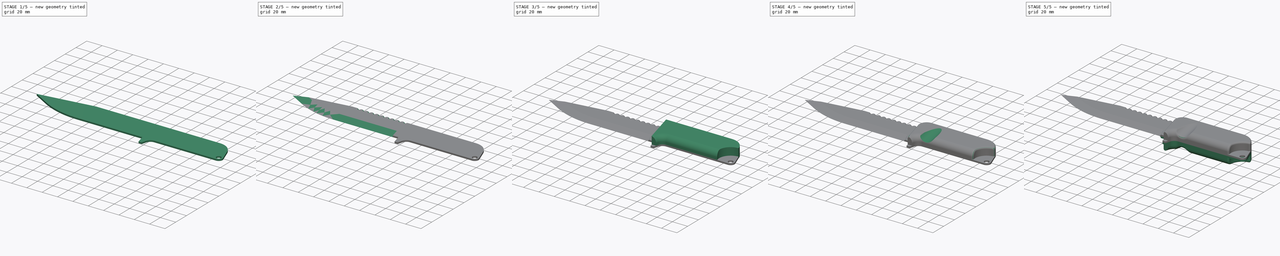
[diagram: build sequence overview — one tinted view per stage of 5, left to right]
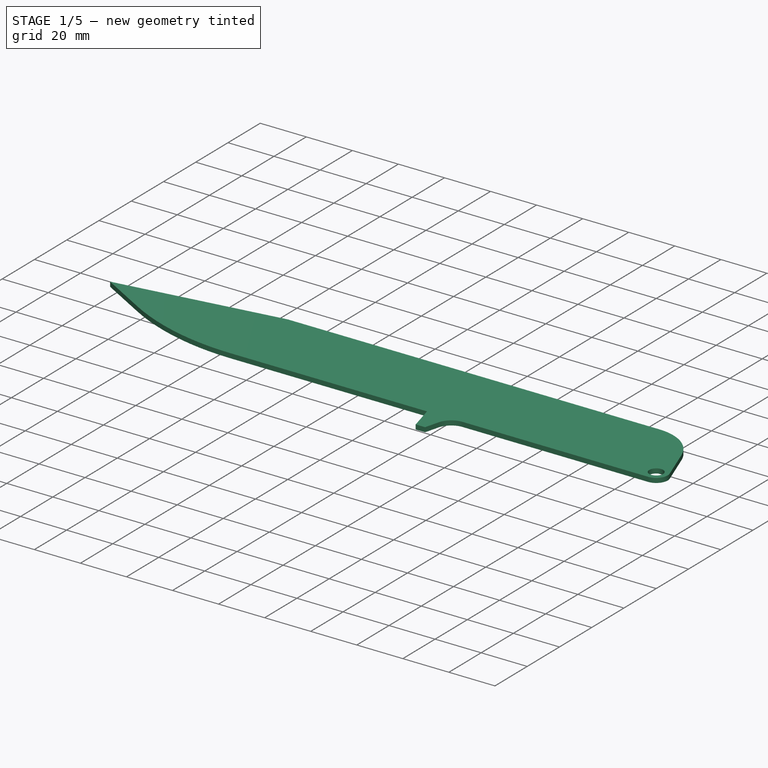
[diagram: stage 1 of 5 — iso view after this stage's code; geometry added in this stage tinted green]
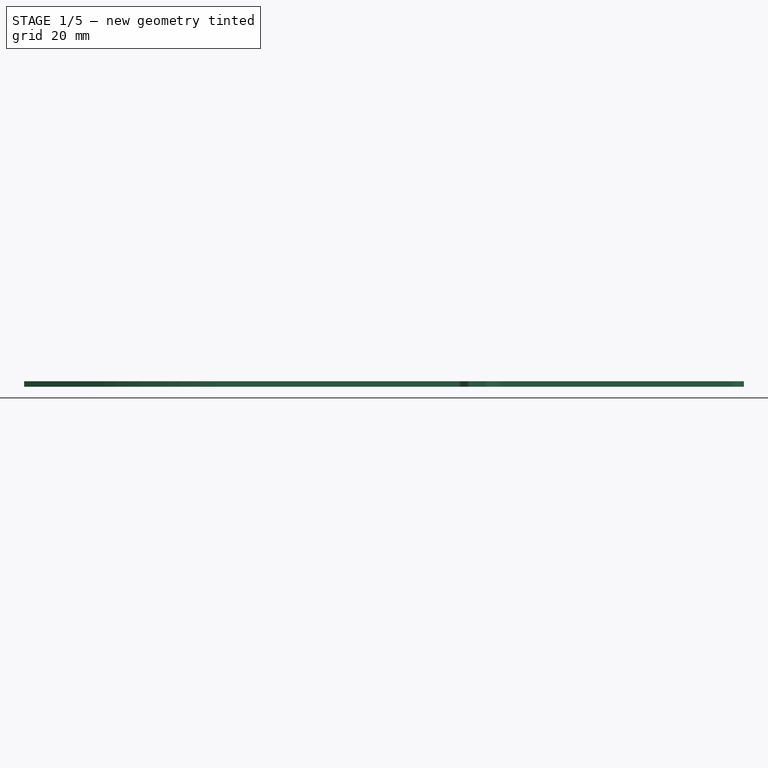
[diagram: stage 1 of 5 — front view after this stage's code; geometry added in this stage tinted green]
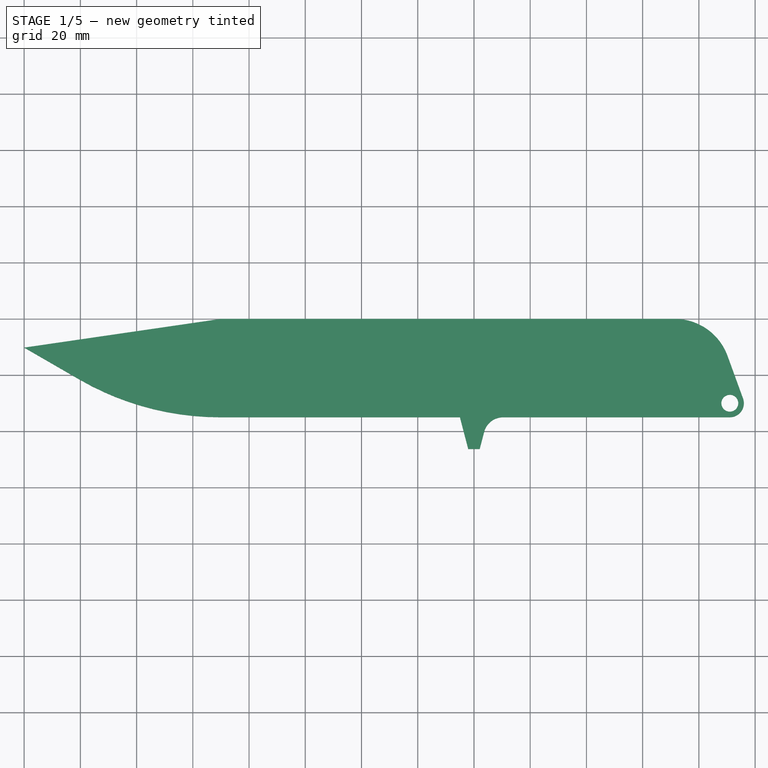
[diagram: stage 1 of 5 — top view after this stage's code; geometry added in this stage tinted green]
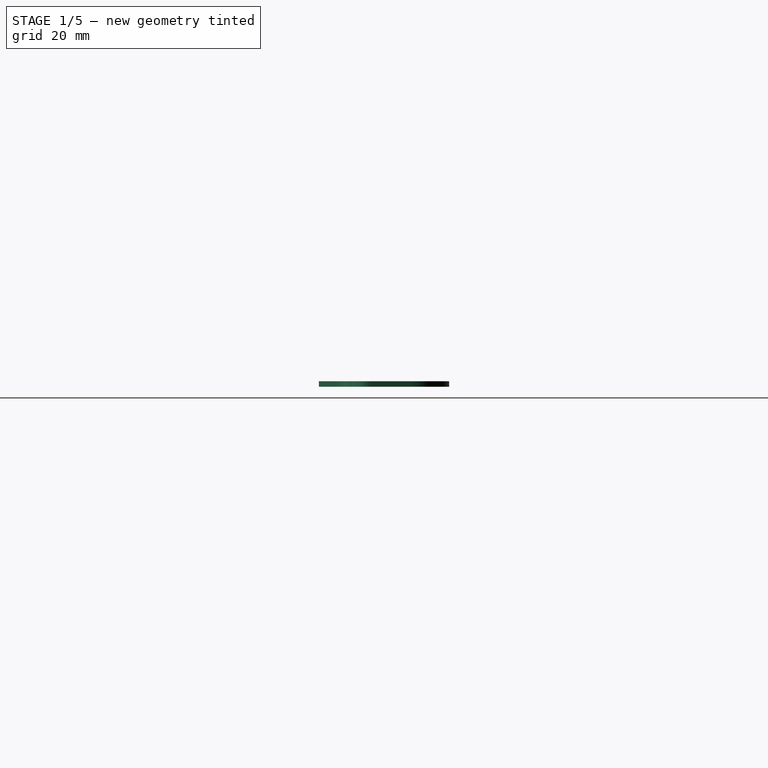
[diagram: stage 1 of 5 — right view after this stage's code; geometry added in this stage tinted green]
FCSTD DOCUMENT  (FreeCAD 0.21R33771 (Git))
Label: ex38
License: All rights reserved
LicenseURL: https://en.wikipedia.org/wiki/All_rights_reserved
objects: Sketcher::SketchObject×7, PartDesign::Fillet×7, PartDesign::Pad×4, PartDesign::Pocket×2, PartDesign::LinearPattern×1, PartDesign::Chamfer×1, PartDesign::Body×1, Part::Mirroring×1, Part::MultiFuse×1
note: 39 computed .brp shape members not serialized (recipe doc carries the construction recipe); baked Part::Feature solids carry a one-line shape summary decoded from their .brp

FEATURE [Sketcher::SketchObject] Sketch
  FullyConstrained = true
  MapMode = 5
  Support = -> [XY_Plane]
  sketch-geometry (9):
    g0: LineSegment StartX=-9.80852 StartY=-13.1596 StartZ=0 EndX=-4.30154 EndY=-28.2899 EndZ=0
    g1: LineSegment StartX=-9 StartY=-35 StartZ=0 EndX=-190.271 EndY=-35 EndZ=0
    g2: LineSegment StartX=-240.271 StartY=-21.6025 StartZ=0 EndX=-260 EndY=-10.2119 EndZ=0
    g3: LineSegment StartX=-260 StartY=-10.2119 StartZ=0 EndX=-190 EndY=0 EndZ=0
    g4: LineSegment StartX=-190 StartY=0 StartZ=0 EndX=-28.6024 EndY=0 EndZ=0
    g5: ArcOfCircle CenterX=-28.6024 CenterY=-20 CenterZ=0 NormalX=0 NormalY=0 NormalZ=1 AngleXU=0 Radius=20 StartAngle=0.349066 EndAngle=1.5708
    g6: ArcOfCircle CenterX=-9 CenterY=-30 CenterZ=0 NormalX=0 NormalY=0 NormalZ=1 AngleXU=0 Radius=5 StartAngle=4.71239 EndAngle=6.63225
    g7: ArcOfCircle CenterX=-190.271 CenterY=65 CenterZ=0 NormalX=0 NormalY=0 NormalZ=1 AngleXU=0 Radius=100 StartAngle=4.18879 EndAngle=4.71239
    g8: Circle CenterX=-9 CenterY=-30 CenterZ=0 NormalX=0 NormalY=0 NormalZ=1 AngleXU=0 Radius=3
  constraints (22):
    c: Horizontal(g1)
    c: Coincident(g2,g3)
    c: Coincident(g3,g4)
    c: Tangent(g4,g5) = 1.5708
    c: Tangent(g0,g5) = 1.5708
    c: Tangent(g0,g6) = 1.5708
    c: Tangent(g1,g6) = 1.5708
    c: Tangent(g2,g7) = 1.5708
    c: Tangent(g1,g7) = 1.5708
    c: DistanceX(g2,g3) = 70
    c: Tangent(g4,g-1)
    c: DistanceX(g2,g-1) = 260
    c: Radius(g5) = 20
    c: Radius(g6) = 5
    c: Angle(g2,g-1) = 0.523599
    c: DistanceY(g1,g4) = 35
    c: Radius(g7) = 100
    c: DistanceX(g6,g-1) = 9
    c: Angle(g0,g1) = 1.22173
    c: Angle(g3,g-1) = 2.99673
    c: Coincident(g8,g6)
    c: Radius(g8) = 3
FEATURE [PartDesign::Pad] Pad
  Direction = (0,0,1)
  Length = 2
  Length2 = 10
  Profile = -> Sketch
  ReferenceAxis = -> Sketch [N_Axis]
  Type = 0
FEATURE [Sketcher::SketchObject] Sketch001
  ExternalGeometry = -> [Pad]
  FullyConstrained = false
  MapMode = 5
  Support = -> [XY_Plane]
  sketch-geometry (6):
    g0: LineSegment StartX=-105 StartY=-35 StartZ=0 EndX=-102.039 EndY=-46.2992 EndZ=0
    g1: LineSegment StartX=-102.039 StartY=-46.2992 StartZ=0 EndX=-97.9615 EndY=-46.2992 EndZ=0
    g2: LineSegment StartX=-97.9615 StartY=-46.2992 StartZ=0 EndX=-95 EndY=-35 EndZ=0
    g3: LineSegment StartX=-95 StartY=-35 StartZ=0 EndX=-105 EndY=-35 EndZ=0
    g4: ArcOfCircle CenterX=-100 CenterY=-43.6847 CenterZ=0 NormalX=0 NormalY=0 NormalZ=1 AngleXU=0 Radius=3.31527 StartAngle=4.05014 EndAngle=5.37463
    g5: GeomPoint X=-100 Y=-47 Z=0
  constraints (15):
    c: PointOnObject(g0,g-3)
    c: Coincident(g0,g1)
    c: Coincident(g1,g2)
    c: PointOnObject(g2,g-3)
    c: Coincident(g2,g3)
    c: Coincident(g3,g0)
    c: DistanceX(g3,g3) = 10
    c: DistanceX(g2,g-1) = 95
    c: Coincident(g4,g0)
    c: Coincident(g4,g1)
    c: PointOnObject(g5,g4)
    c: Vertical(g4,g5)
    c: DistanceY(g5,g0) = 12
    c: Parallel(g1,g3)
    c: Equal(g0,g2)
FEATURE [PartDesign::Pad] Pad001
  BaseFeature = -> Pad
  Direction = (0,0,1)
  Length = 2
  Length2 = 10
  Profile = -> Sketch001
  ReferenceAxis = -> Sketch001 [N_Axis]
  Type = 0
FEATURE [PartDesign::Fillet] Fillet
  Base = -> Pad001 [Edge32]
  BaseFeature = -> Pad001
  Radius = 7
  SupportTransform = false
  UseAllEdges = false
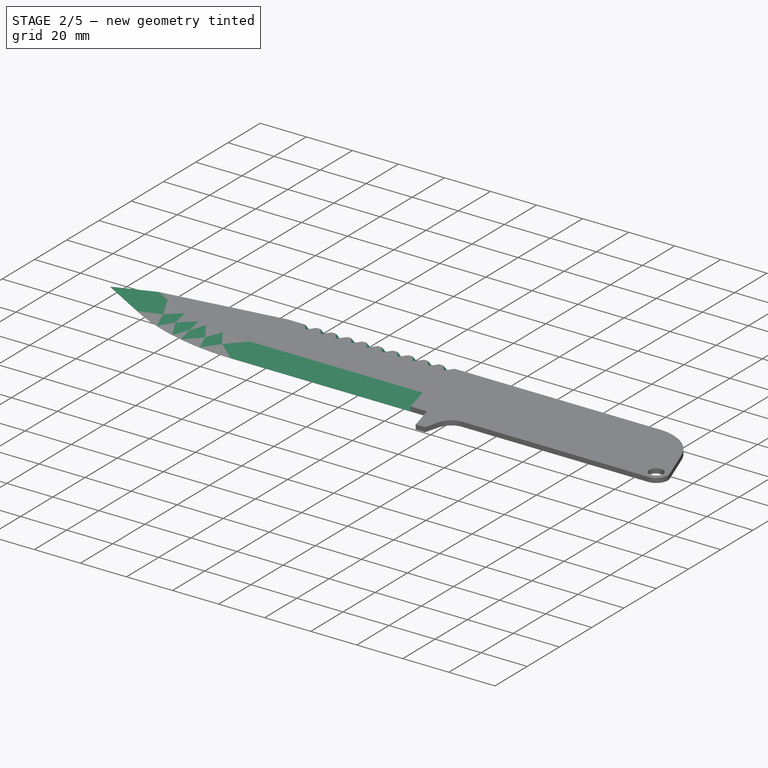
[diagram: stage 2 of 5 — iso view after this stage's code; geometry added in this stage tinted green]
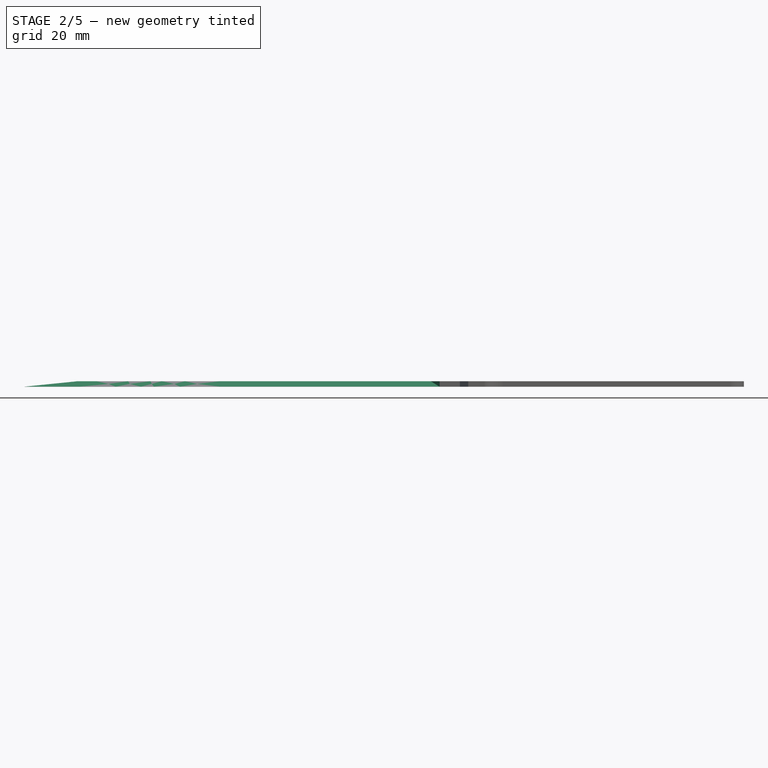
[diagram: stage 2 of 5 — front view after this stage's code; geometry added in this stage tinted green]
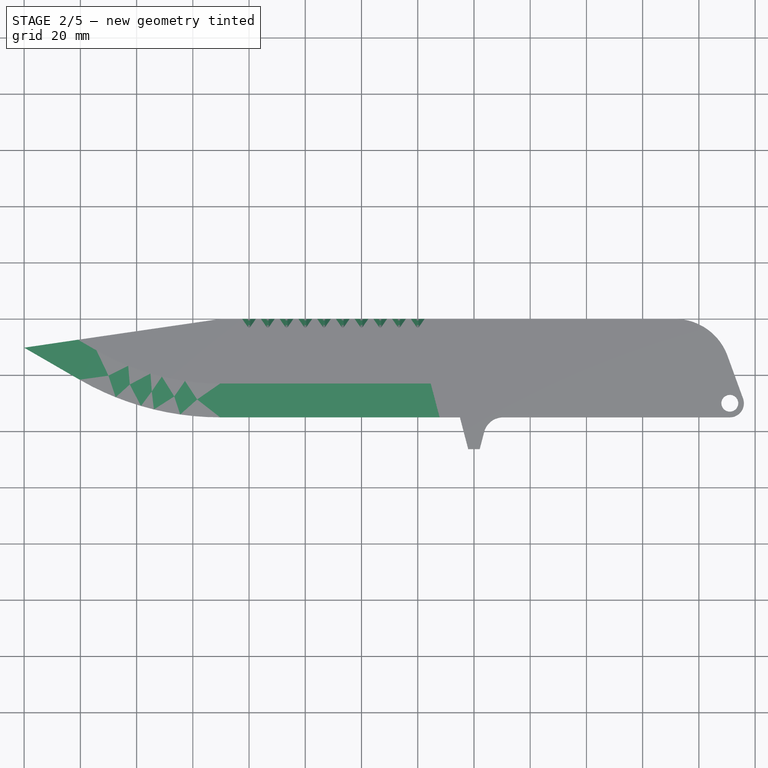
[diagram: stage 2 of 5 — top view after this stage's code; geometry added in this stage tinted green]
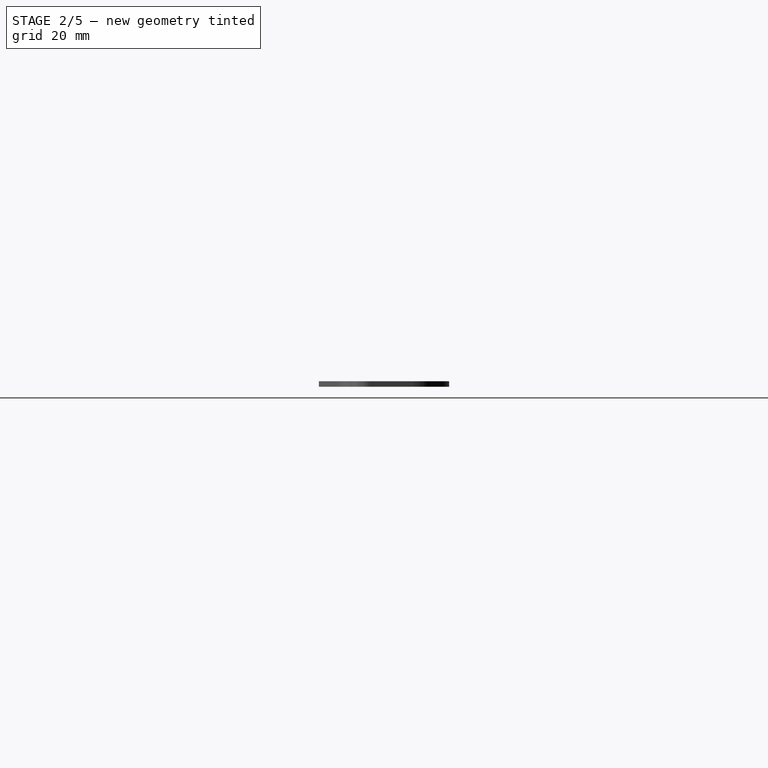
[diagram: stage 2 of 5 — right view after this stage's code; geometry added in this stage tinted green]
FEATURE [Sketcher::SketchObject] Sketch002
  AttachmentOffset = pos=(0,0,0.2) rot=(0,0,1;0rad)
  FullyConstrained = true
  MapMode = 5
  Placement = pos=(0,0,0.2) rot=(0,0,1;0rad)
  Support = -> [XY_Plane]
  sketch-geometry (4):
    g0: LineSegment StartX=-180.41 StartY=0.213212 StartZ=0 EndX=-184.462 EndY=6 EndZ=0
    g1: LineSegment StartX=-184.462 StartY=6 StartZ=0 EndX=-175.538 EndY=6 EndZ=0
    g2: LineSegment StartX=-175.538 StartY=6 StartZ=0 EndX=-179.59 EndY=0.213212 EndZ=0
    g3: ArcOfCircle CenterX=-180 CenterY=0.5 CenterZ=0 NormalX=0 NormalY=0 NormalZ=1 AngleXU=0 Radius=0.5 StartAngle=3.75246 EndAngle=5.67232
  constraints (11):
    c: Coincident(g0,g1)
    c: Horizontal(g1)
    c: Coincident(g1,g2)
    c: Tangent(g3,g0) = 1.5708
    c: Tangent(g3,g2) = 1.5708
    c: Equal(g0,g2)
    c: Angle(g2,g0) = 1.22173
    c: Radius(g3) = 0.5
    c: DistanceX(g-2,g3) = -180
    c: DistanceY(g-1,g0) = 6
    c: Tangent(g3,g-1)
FEATURE [Sketcher::SketchObject] Sketch003
  FullyConstrained = false
  MapMode = 5
  Placement = pos=(0,0,0) rot=(0.57735,0.57735,0.57735;2.0944rad)
  Support = -> [YZ_Plane]
  sketch-geometry (1):
    g0: LineSegment StartX=0 StartY=0 StartZ=0 EndX=-42.5333 EndY=24.5566 EndZ=0
  constraints (2):
    c: Coincident(g0,g-1)
    c: Angle(g-2,g0) = 1.0472
FEATURE [PartDesign::Pocket] Pocket
  BaseFeature = -> Fillet
  Direction = (3e-16,0.866025,-0.5)
  Length = 5
  Length2 = 5
  Profile = -> Sketch002
  ReferenceAxis = -> Sketch003 [Edge1]
  Reversed = true
  Type = 0
FEATURE [PartDesign::LinearPattern] LinearPattern
  BaseFeature = -> Pocket
  Direction = -> Sketch002 [H_Axis]
  Length = 60
  Occurrences = 10
  Originals = -> [Pocket]
FEATURE [PartDesign::Chamfer] Chamfer
  Angle = 45
  Base = -> LinearPattern [Edge30]
  BaseFeature = -> LinearPattern
  ChamferType = 1
  FlipDirection = false
  Size = 1.95
  Size2 = 12
  SupportTransform = false
  UseAllEdges = false
FEATURE [Sketcher::SketchObject] Sketch004
  ExternalGeometry = -> [Chamfer]
  FullyConstrained = true
  MapMode = 5
  Support = -> [XY_Plane]
  sketch-geometry (4):
    g0: LineSegment StartX=-108.145 StartY=-23 StartZ=0 EndX=-105 EndY=-35 EndZ=0
    g1: LineSegment StartX=-105 StartY=-35 StartZ=0 EndX=-112.236 EndY=-35 EndZ=0
    g2: LineSegment StartX=-112.236 StartY=-35 StartZ=0 EndX=-115.382 EndY=-23 EndZ=0
    g3: LineSegment StartX=-115.382 StartY=-23 StartZ=0 EndX=-108.145 EndY=-23 EndZ=0
  constraints (10):
    c: Coincident(g-3,g0)
    c: Coincident(g0,g-4)
    c: Coincident(g0,g1)
    c: PointOnObject(g1,g-4)
    c: Coincident(g1,g2)
    c: PointOnObject(g2,g-3)
    c: Coincident(g2,g3)
    c: Coincident(g3,g0)
    c: Parallel(g2,g0)
    c: Distance(g1,g0) = 7
FEATURE [PartDesign::Pad] Pad002
  BaseFeature = -> Chamfer
  Direction = (0,0,1)
  Length = 10
  Length2 = 10
  Profile = -> Sketch004
  ReferenceAxis = -> Sketch004 [N_Axis]
  Type = 3
  UpToFace = -> Chamfer [Face8]
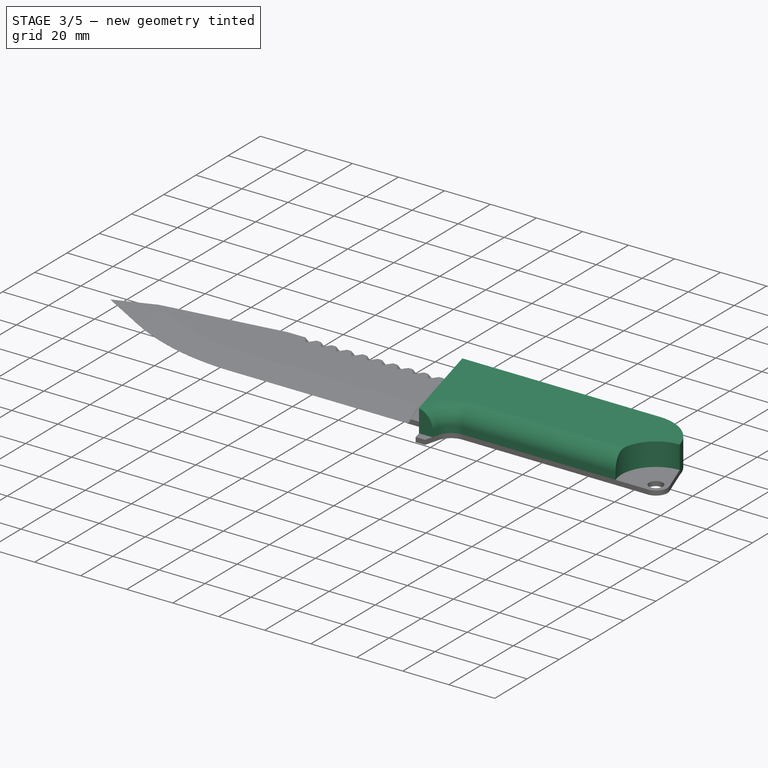
[diagram: stage 3 of 5 — iso view after this stage's code; geometry added in this stage tinted green]
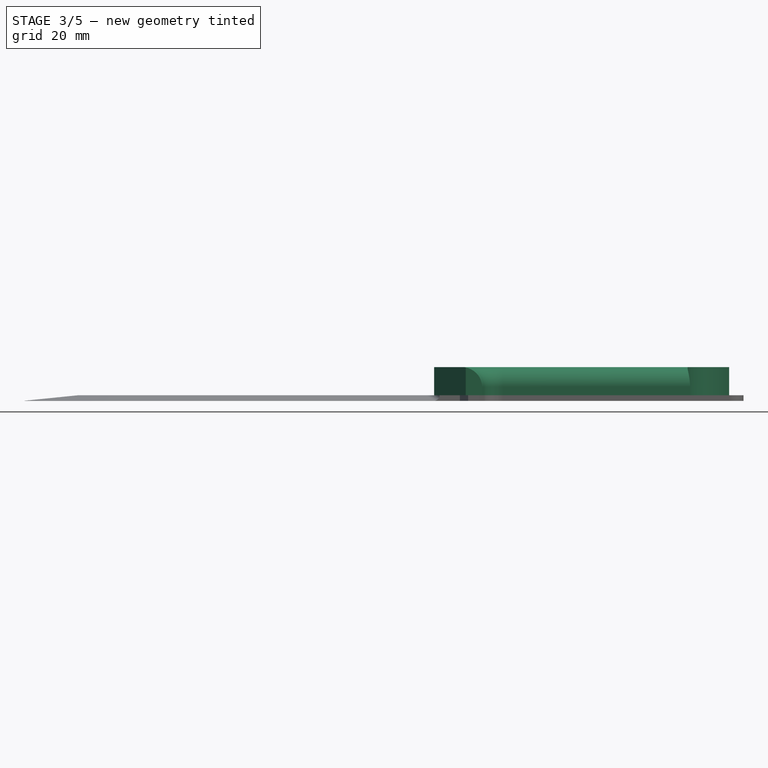
[diagram: stage 3 of 5 — front view after this stage's code; geometry added in this stage tinted green]
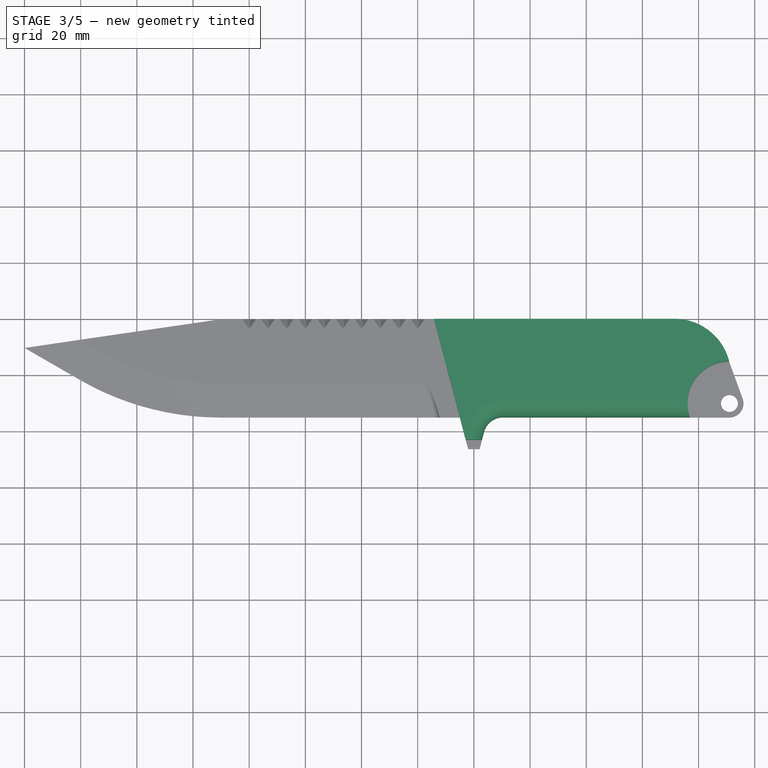
[diagram: stage 3 of 5 — top view after this stage's code; geometry added in this stage tinted green]
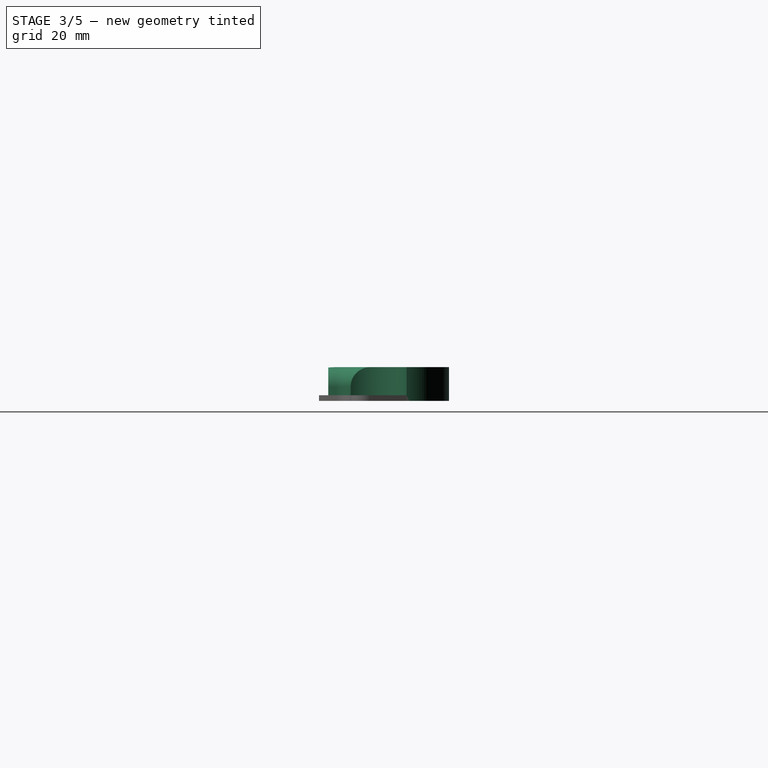
[diagram: stage 3 of 5 — right view after this stage's code; geometry added in this stage tinted green]
FEATURE [PartDesign::Fillet] Fillet001
  Base = -> Pad002 [Edge7]
  BaseFeature = -> Pad002
  Radius = 1.9
  SupportTransform = false
  UseAllEdges = false
FEATURE [Sketcher::SketchObject] Sketch005
  ExternalGeometry = -> [Fillet001,Pad002]
  FullyConstrained = false
  MapMode = 5
  Support = -> [XY_Plane]
  sketch-geometry (8):
    g0: LineSegment StartX=-114.173 StartY=0 StartZ=0 EndX=-28.6024 EndY=-6.644e-13 EndZ=0
    g1: LineSegment StartX=-114.173 StartY=0 StartZ=0 EndX=-102.903 EndY=-43 EndZ=0
    g2: LineSegment StartX=-102.903 StartY=-43 StartZ=0 EndX=-97.0968 EndY=-43 EndZ=0
    g3: LineSegment StartX=-97.0968 StartY=-43 StartZ=0 EndX=-96.3695 EndY=-40.2253 EndZ=0
    g4: ArcOfCircle CenterX=-28.6024 CenterY=-20.1412 CenterZ=0 NormalX=0 NormalY=0 NormalZ=1 AngleXU=0 Radius=20.1412 StartAngle=0.252967 EndAngle=1.5708
    g5: LineSegment StartX=-89.5982 StartY=-35 StartZ=0 EndX=-23.036 EndY=-35 EndZ=0
    g6: ArcOfCircle CenterX=-9 CenterY=-30 CenterZ=0 NormalX=0 NormalY=0 NormalZ=1 AngleXU=0 Radius=14.9 StartAngle=1.57765 EndAngle=3.4838
    g7: ArcOfCircle CenterX=-89.5982 CenterY=-42 CenterZ=0 NormalX=0 NormalY=0 NormalZ=1 AngleXU=0 Radius=7 StartAngle=1.5708 EndAngle=2.88526
  constraints (23):
    c: Coincident(g0,g1)
    c: PointOnObject(g1,g-9)
    c: Coincident(g1,g2)
    c: PointOnObject(g2,g-8)
    c: Coincident(g2,g3)
    c: Coincident(g3,g-8)
    c: Horizontal(g2)
    c: PointOnObject(g-9,g1)
    c: PointOnObject(g0,g-10)
    c: Coincident(g0,g-10)
    c: Coincident(g4,g0)
    c: DistanceY(g2,g5) = 8
    c: Coincident(g6,g4)
    c: Coincident(g6,g5)
    c: Coincident(g6,g-5)
    c: Radius(g6) = 14.9
    c: PointOnObject(g4,g-4)
    c: Tangent(g5,g-6)
    c: Coincident(g7,g3)
    c: Coincident(g7,g-7)
    c: Tangent(g7,g-7)
    c: Coincident(g7,g5)
    c: Tangent(g4,g-3)
FEATURE [PartDesign::Pad] Pad003
  BaseFeature = -> Fillet001
  Direction = (0,0,1)
  Length = 12
  Length2 = 10
  Profile = -> Sketch005
  ReferenceAxis = -> Sketch005 [N_Axis]
  Type = 0
FEATURE [PartDesign::Fillet] Fillet002
  Base = -> Pad003 [Edge180]
  BaseFeature = -> Pad003
  Radius = 7
  SupportTransform = false
  UseAllEdges = false
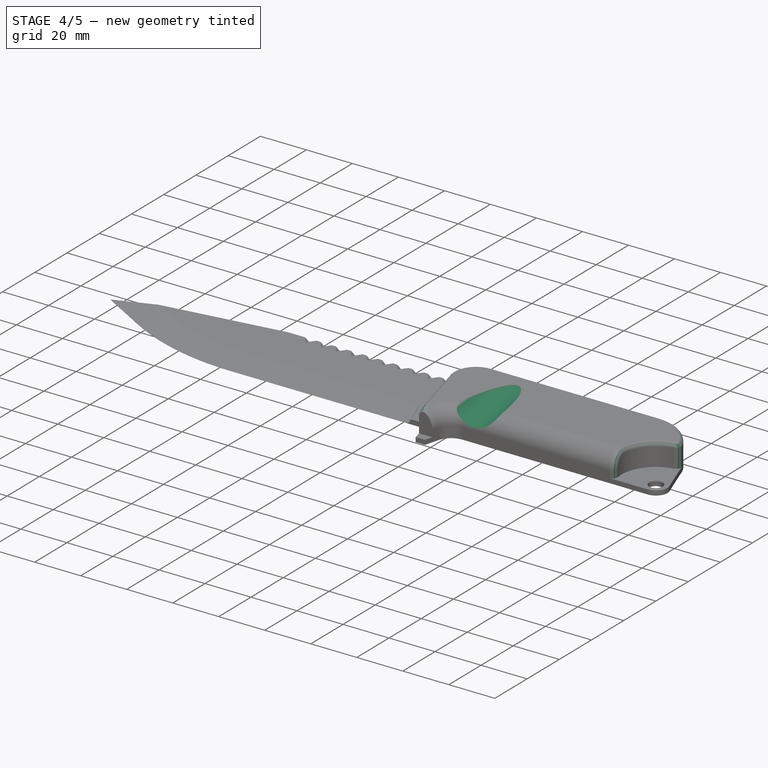
[diagram: stage 4 of 5 — iso view after this stage's code; geometry added in this stage tinted green]
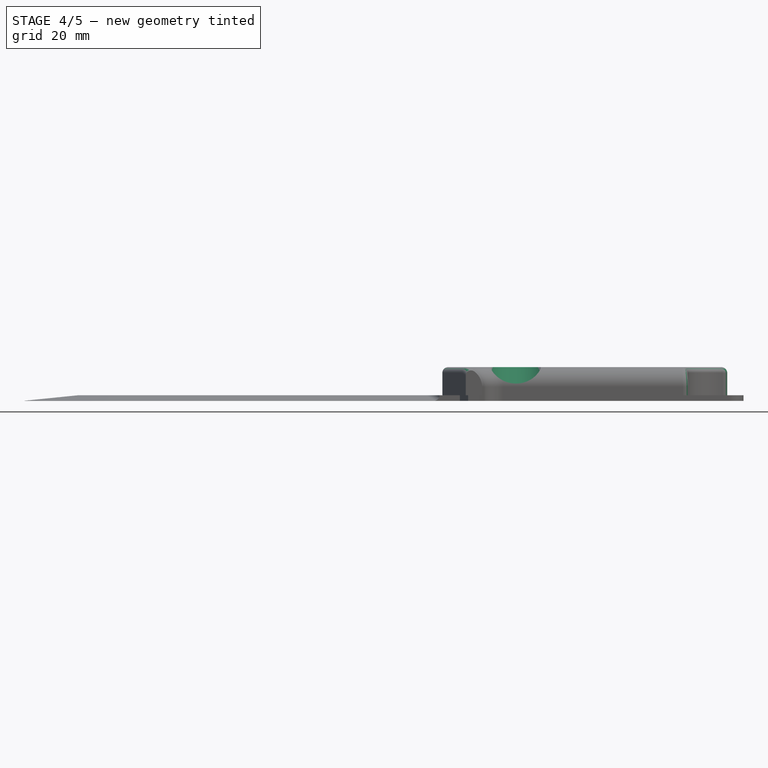
[diagram: stage 4 of 5 — front view after this stage's code; geometry added in this stage tinted green]
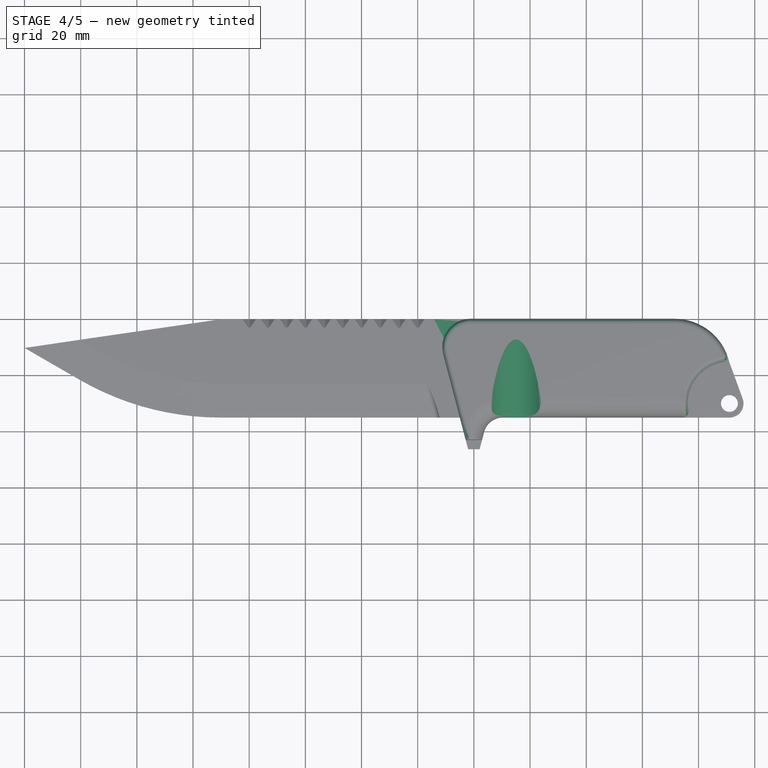
[diagram: stage 4 of 5 — top view after this stage's code; geometry added in this stage tinted green]
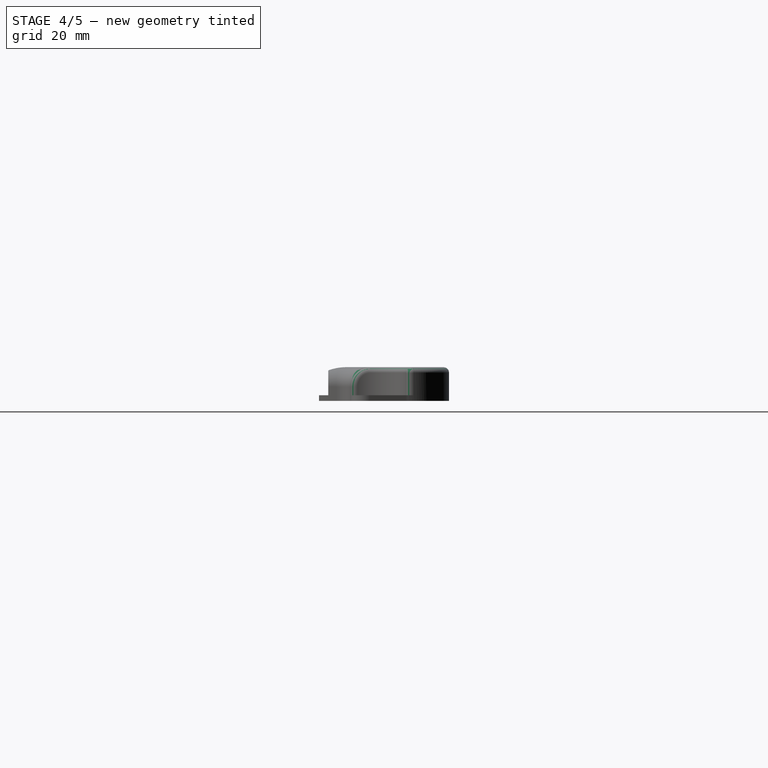
[diagram: stage 4 of 5 — right view after this stage's code; geometry added in this stage tinted green]
FEATURE [PartDesign::Fillet] Fillet003
  Base = -> Fillet002 [Edge6]
  BaseFeature = -> Fillet002
  Radius = 10
  SupportTransform = false
  UseAllEdges = false
FEATURE [PartDesign::Fillet] Fillet004
  Base = -> Fillet003 [Edge1]
  BaseFeature = -> Fillet003
  Radius = 2
  SupportTransform = false
  UseAllEdges = false
FEATURE [PartDesign::Fillet] Fillet005
  Base = -> Fillet004 [Edge208,Edge203,Edge105,Edge206,Edge205]
  BaseFeature = -> Fillet004
  Radius = 2
  SupportTransform = false
  UseAllEdges = false
FEATURE [Sketcher::SketchObject] Sketch006
  AttachmentOffset = pos=(0,0,35) rot=(1,0,0;0.20944rad)
  FullyConstrained = true
  MapMode = 5
  Placement = pos=(0,-35,-7.8e-15) rot=(1,0,0;1.78024rad)
  Support = -> [XZ_Plane]
  sketch-geometry (1):
    g0: Circle CenterX=-85 CenterY=17 CenterZ=0 NormalX=0 NormalY=0 NormalZ=1 AngleXU=0 Radius=11
  constraints (3):
    c: DistanceX(g-2,g0) = -85
    c: Radius(g0) = 11
    c: DistanceY(g-1,g0) = 17
FEATURE [PartDesign::Pocket] Pocket001
  BaseFeature = -> Fillet005
  Direction = (0,0.978148,0.207912)
  Length = 39
  Length2 = 5
  Profile = -> Sketch006
  ReferenceAxis = -> Sketch006 [N_Axis]
  Type = 0
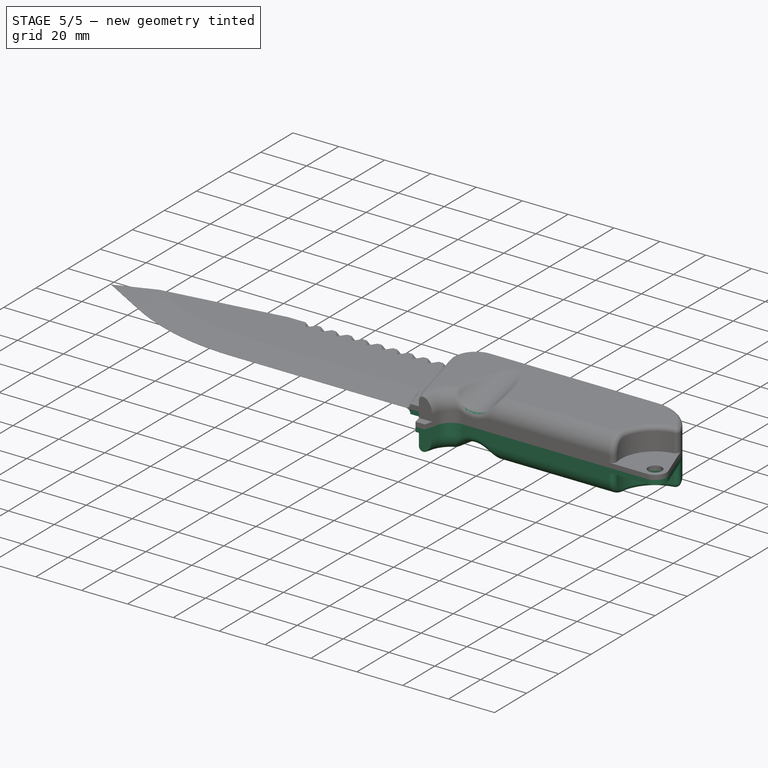
[diagram: stage 5 of 5 — iso view after this stage's code; geometry added in this stage tinted green]
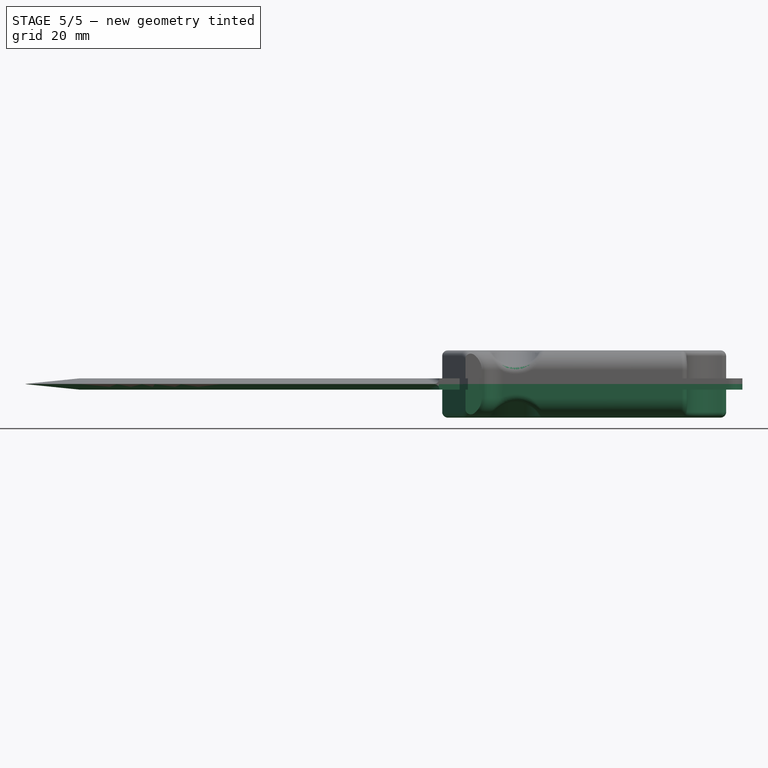
[diagram: stage 5 of 5 — front view after this stage's code; geometry added in this stage tinted green]
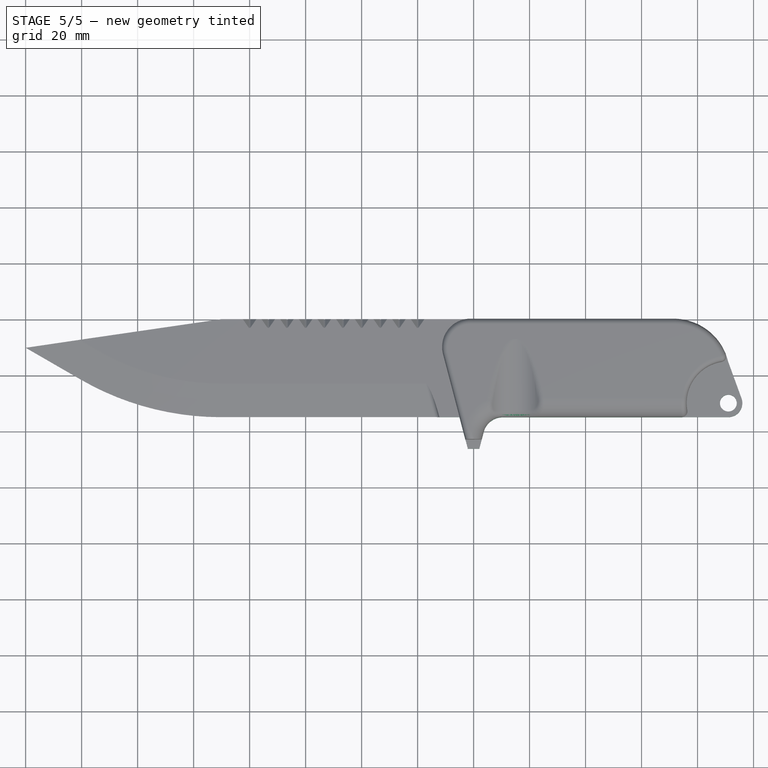
[diagram: stage 5 of 5 — top view after this stage's code; geometry added in this stage tinted green]
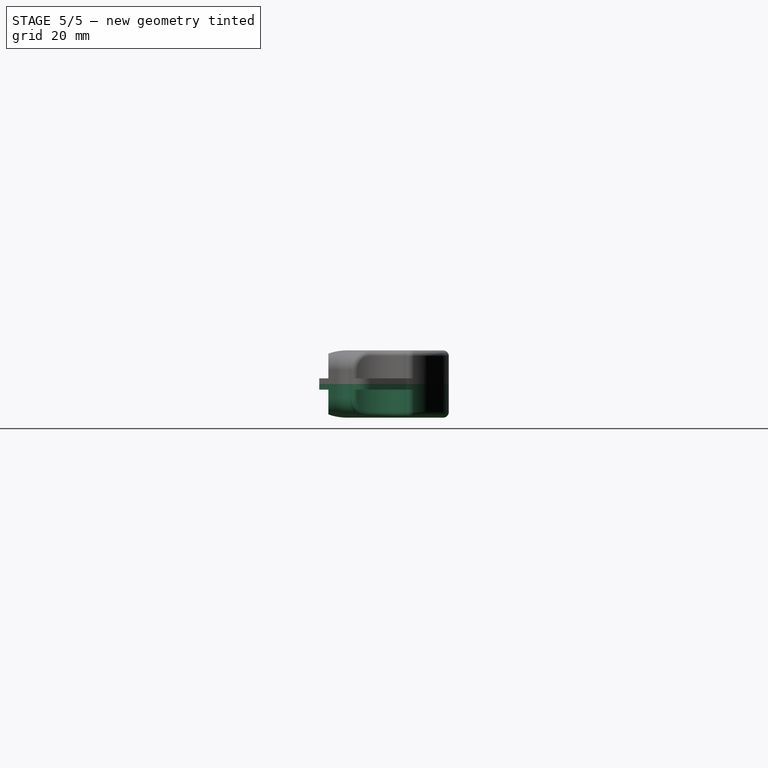
[diagram: stage 5 of 5 — right view after this stage's code; geometry added in this stage tinted green]
FEATURE [PartDesign::Fillet] Fillet006
  Base = -> Pocket001 [Edge9,Edge10,Edge1]
  BaseFeature = -> Pocket001
  Radius = 3
  SupportTransform = false
  UseAllEdges = false
FEATURE [PartDesign::Body] Body
  Group = -> [Sketch,Pad,Sketch001,Pad001,Fillet,Sketch002,Sketch003,Pocket,LinearPattern,Chamfer,Sketch004,Pad002,Fillet001,Sketch005,Pad003,Fillet002,Fillet003,Fillet004,Fillet005,Sketch006,Pocket001,Fillet006]
  Origin = -> Origin
  Tip = -> Fillet006
FEATURE [Part::Mirroring] Part__Mirroring  label="Body (Mirror #1)"
  Base = (0,0,0)
  Normal = (0,0,1)
  Source = -> Body
FEATURE [Part::MultiFuse] Fusion
  Shapes = -> [Part__Mirroring,Body]
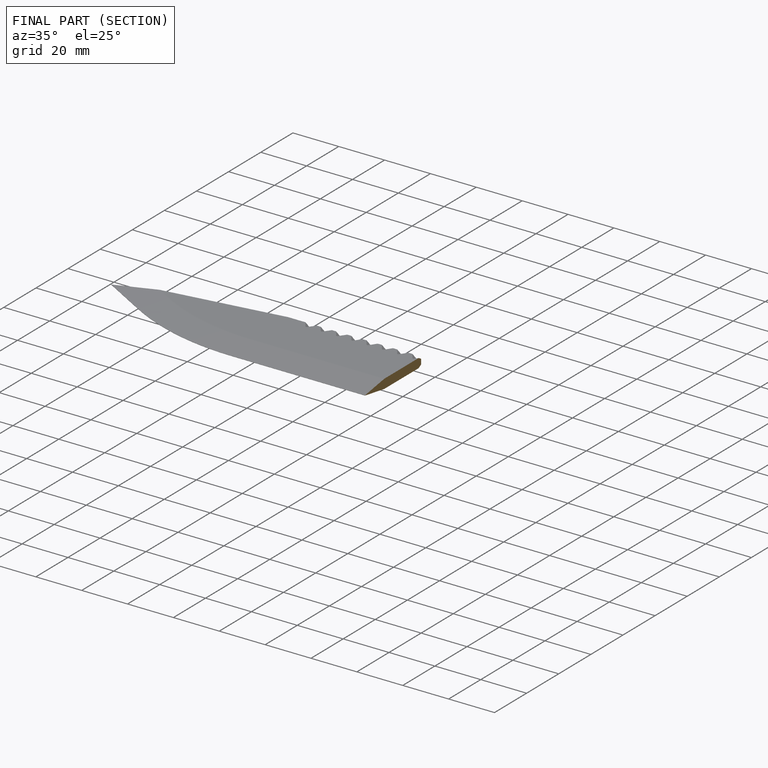
[diagram: finished part — half-section view (interior)]
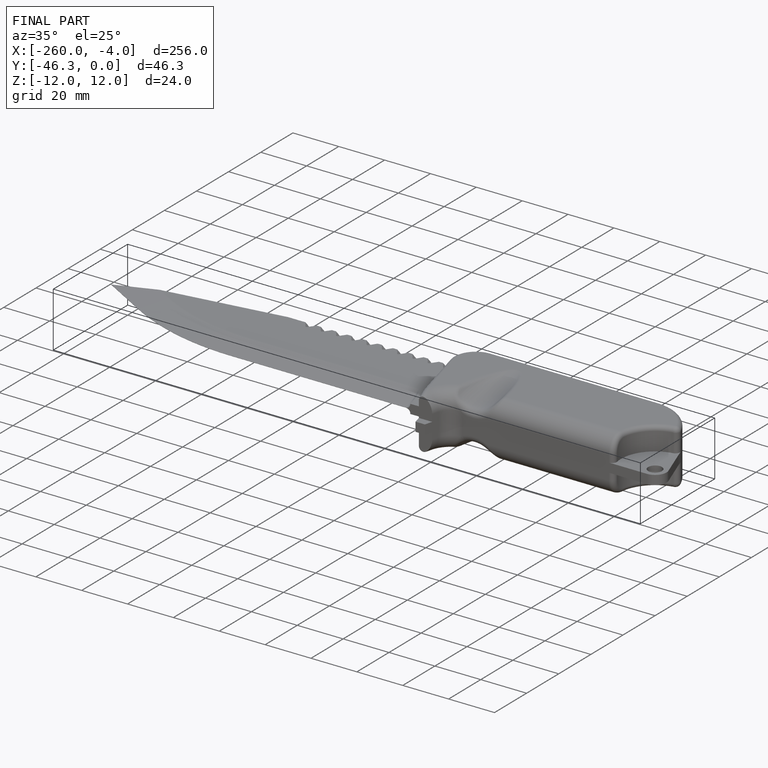
[diagram: finished part — iso view with bounding-box wireframe]
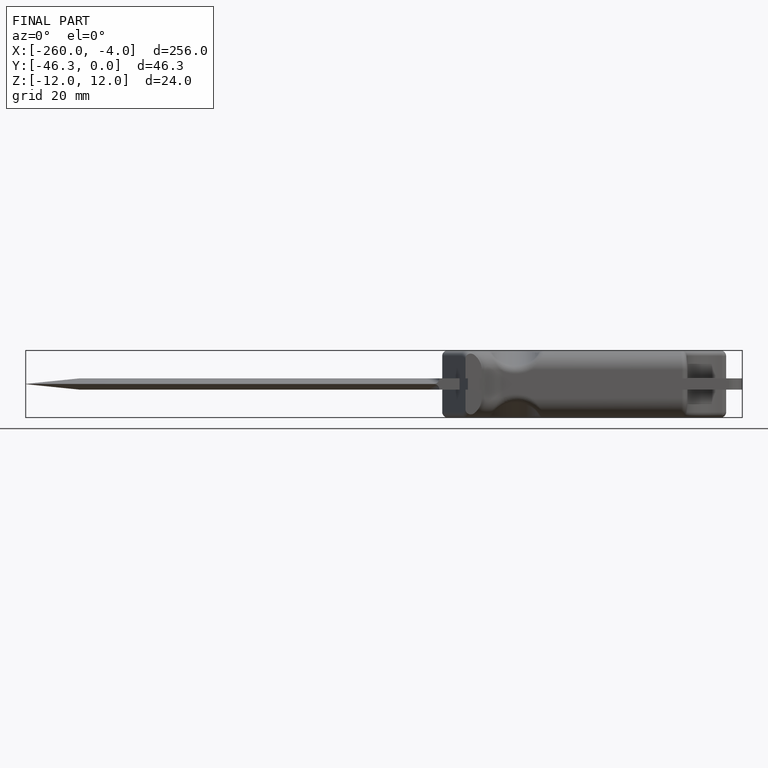
[diagram: finished part — front view with bounding-box wireframe]
